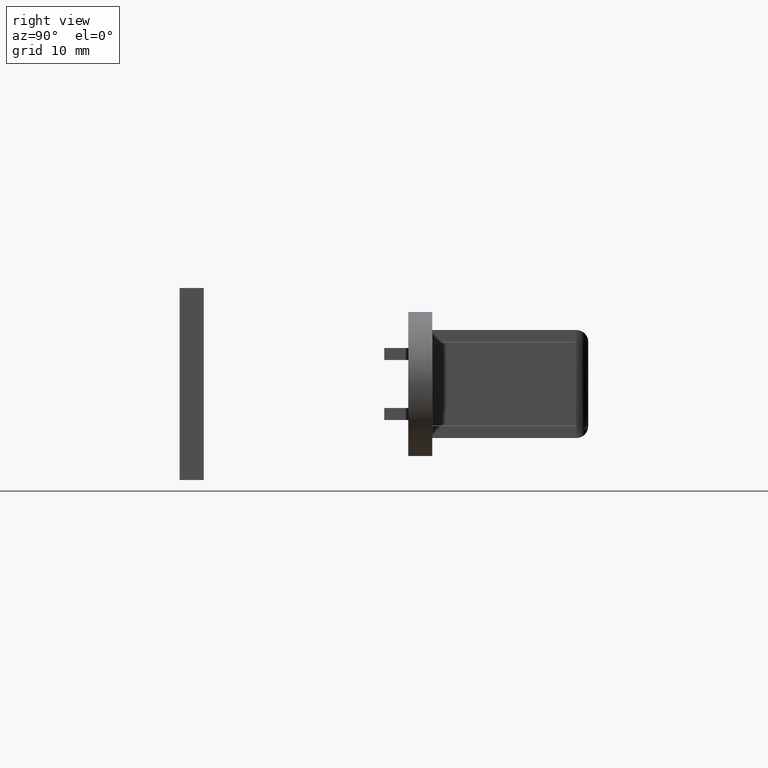
[diagram: clean part render]
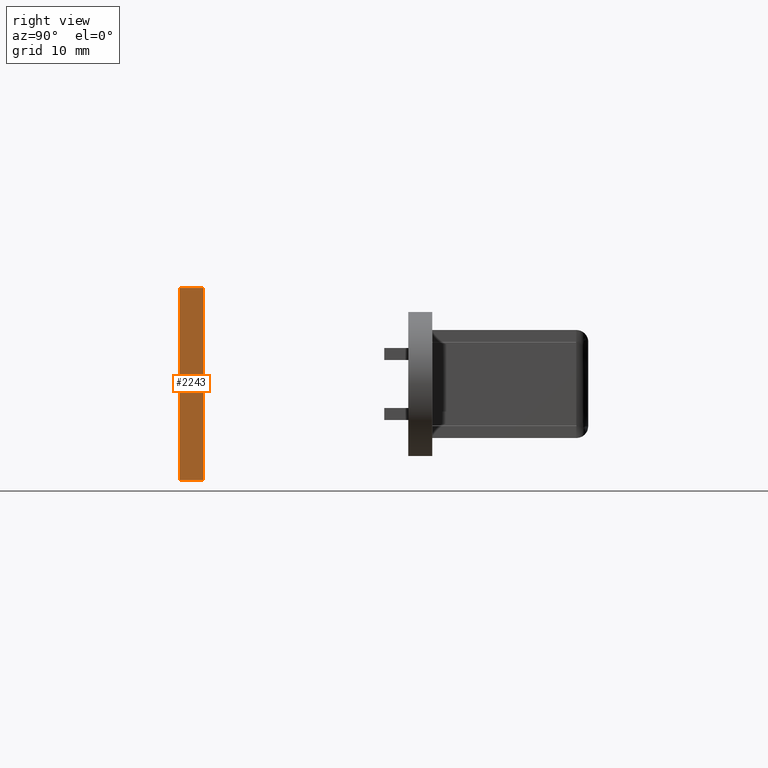
[diagram: same view with one face highlighted and labeled with its STEP entity id]
A machine part, right view. The second image highlights one B-rep face of the part: STEP entity #2243.
In plain terms, the highlighted face is a freeform B-spline surface patch.
Its self-contained STEP definition (entity closure, byte-faithful):
#2138=CARTESIAN_POINT('',(14.500000000000000,-34.044645065486648,-8.0));
#2139=VERTEX_POINT('',#2138);
#2145=CARTESIAN_POINT('',(14.500000000000000,-34.044645065486648,8.0));
#2146=VERTEX_POINT('',#2145);
#2147=CARTESIAN_POINT('',(14.500000000000000,-34.044645065486648,8.0));
#2148=CARTESIAN_POINT('',(14.500000000000000,-34.044645065486648,-8.0));
#2149=QUASI_UNIFORM_CURVE('',1,(#2147,#2148),.UNSPECIFIED.,.F.,.U.);
#2150=EDGE_CURVE('',#2146,#2139,#2149,.T.);
#2180=CARTESIAN_POINT('',(14.500000000000000,-32.044645065486648,8.0));
#2181=VERTEX_POINT('',#2180);
#2187=CARTESIAN_POINT('',(14.500000000000000,-32.044645065486648,-8.0));
#2188=VERTEX_POINT('',#2187);
#2189=CARTESIAN_POINT('',(14.500000000000000,-32.044645065486648,8.0));
#2190=CARTESIAN_POINT('',(14.500000000000000,-32.044645065486648,-8.0));
#2191=QUASI_UNIFORM_CURVE('',1,(#2189,#2190),.UNSPECIFIED.,.F.,.U.);
#2192=EDGE_CURVE('',#2181,#2188,#2191,.T.);
#2220=CARTESIAN_POINT('',(14.500000000000000,-32.044645065486648,-8.0));
#2221=CARTESIAN_POINT('',(14.500000000000000,-34.044645065486648,-8.0));
#2222=QUASI_UNIFORM_CURVE('',1,(#2220,#2221),.UNSPECIFIED.,.F.,.U.);
#2223=EDGE_CURVE('',#2188,#2139,#2222,.T.);
#2228=CARTESIAN_POINT('',(14.500000000000000,-34.144545061610259,-8.799199968988896));
#2229=CARTESIAN_POINT('',(14.500000000000000,-34.144545061610259,8.799200398142338));
#2230=CARTESIAN_POINT('',(14.500000000000000,-31.944745015718858,-8.799199968988896));
#2231=CARTESIAN_POINT('',(14.500000000000000,-31.944745015718858,8.799200398142338));
#2232=B_SPLINE_SURFACE_WITH_KNOTS('',1,1,((#2228,#2230),(#2229,#2231)),.UNSPECIFIED.,.F.,.F.,.U.,(2,2),(2,2),(0.0,17.598400367131230),(0.0,2.199800045891404),.UNSPECIFIED.);
#2233=ORIENTED_EDGE('',*,*,#2150,.T.);
#2234=ORIENTED_EDGE('',*,*,#2223,.F.);
#2235=ORIENTED_EDGE('',*,*,#2192,.F.);
#2236=CARTESIAN_POINT('',(14.500000000000000,-32.044645065486648,8.0));
#2237=CARTESIAN_POINT('',(14.500000000000000,-34.044645065486648,8.0));
#2238=QUASI_UNIFORM_CURVE('',1,(#2236,#2237),.UNSPECIFIED.,.F.,.U.);
#2239=EDGE_CURVE('',#2181,#2146,#2238,.T.);
#2240=ORIENTED_EDGE('',*,*,#2239,.T.);
#2241=EDGE_LOOP('',(#2233,#2234,#2235,#2240));
#2242=FACE_OUTER_BOUND('',#2241,.T.);
#2243=ADVANCED_FACE('',(#2242),#2232,.F.);